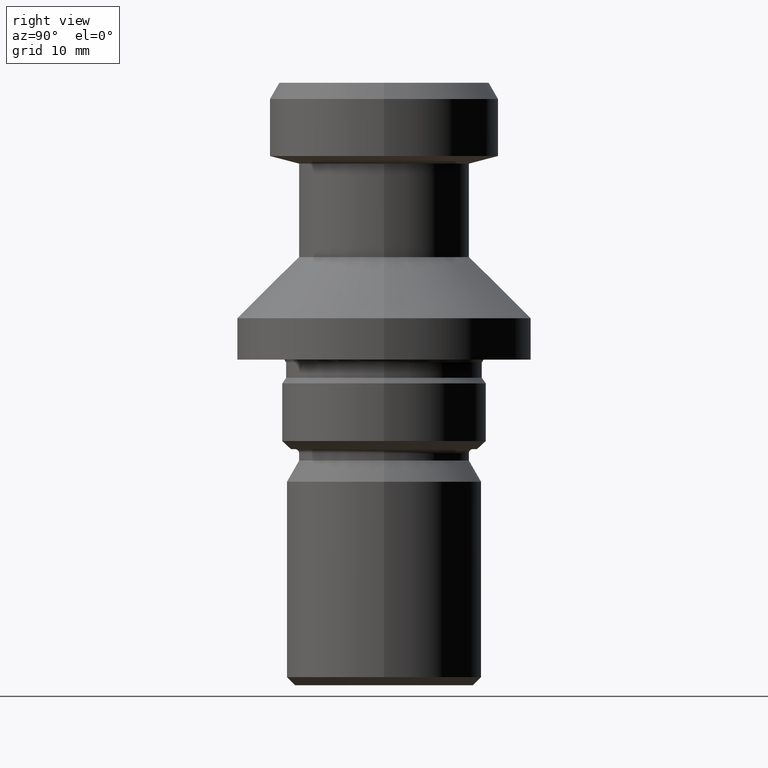
[diagram: clean part render]
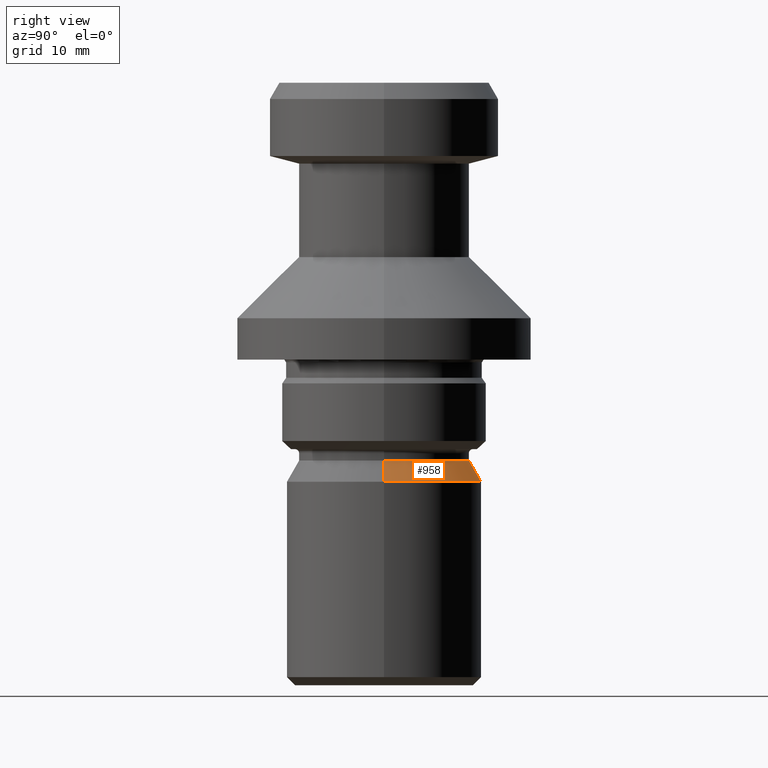
[diagram: same view with one face highlighted and labeled with its STEP entity id]
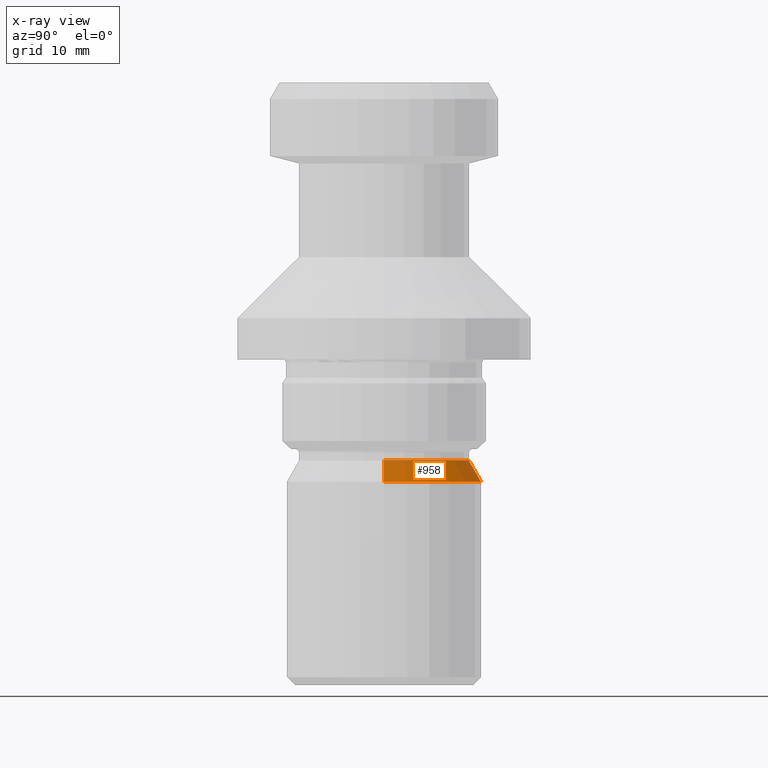
[diagram: x-ray of the same camera — body ghosted, the highlighted face saturated]
A machine part, right view. The second image highlights one B-rep face of the part: STEP entity #958.
The next image is the same camera in x-ray: the body ghosted, the highlighted face saturated — about 0% of this face is hidden behind the body in this view.
In plain terms, the highlighted conical surface has half-angle 30 deg.
Its self-contained STEP definition (entity closure, byte-faithful):
#67 = CARTESIAN_POINT ( 'NONE',  ( 12.00000000000000000, 0.0000000000000000000, -49.00000000000000700 ) ) ;
#82 = DIRECTION ( 'NONE',  ( 0.5000000000000001100, 6.123233995736767300E-017, -0.8660254037844386000 ) ) ;
#123 = VERTEX_POINT ( 'NONE', #1022 ) ;
#164 = DIRECTION ( 'NONE',  ( 1.000000000000000000, 0.0000000000000000000, 0.0000000000000000000 ) ) ;
#179 = VERTEX_POINT ( 'NONE', #647 ) ;
#192 = VECTOR ( 'NONE', #82, 1000.000000000000000 ) ;
#193 = VECTOR ( 'NONE', #313, 1000.000000000000000 ) ;
#224 = DIRECTION ( 'NONE',  ( -0.0000000000000000000, -0.0000000000000000000, 1.000000000000000000 ) ) ;
#277 = CONICAL_SURFACE ( 'NONE', #872, 12.00000000000000000, 0.5235987755982990400 ) ;
#298 = DIRECTION ( 'NONE',  ( 1.000000000000000000, 0.0000000000000000000, 0.0000000000000000000 ) ) ;
#313 = DIRECTION ( 'NONE',  ( -0.5000000000000001100, 0.0000000000000000000, -0.8660254037844386000 ) ) ;
#342 = AXIS2_PLACEMENT_3D ( 'NONE', #714, #810, #164 ) ;
#347 = AXIS2_PLACEMENT_3D ( 'NONE', #774, #224, #298 ) ;
#400 = LINE ( 'NONE', #588, #192 ) ;
#402 = LINE ( 'NONE', #478, #193 ) ;
#421 = CIRCLE ( 'NONE', #347, 10.50000000000000000 ) ;
#443 = CARTESIAN_POINT ( 'NONE',  ( 0.0000000000000000000, 0.0000000000000000000, -49.00000000000000700 ) ) ;
#445 = VERTEX_POINT ( 'NONE', #964 ) ;
#478 = CARTESIAN_POINT ( 'NONE',  ( -12.00000000000000000, 0.0000000000000000000, -49.00000000000000700 ) ) ;
#519 = ORIENTED_EDGE ( 'NONE', *, *, #866, .T. ) ;
#529 = FACE_OUTER_BOUND ( 'NONE', #579, .T. ) ;
#579 = EDGE_LOOP ( 'NONE', ( #1030, #519, #875, #742 ) ) ;
#588 = CARTESIAN_POINT ( 'NONE',  ( 12.00000000000000000, 1.469576158976823900E-015, -49.00000000000000700 ) ) ;
#612 = EDGE_CURVE ( 'NONE', #179, #445, #421, .T. ) ;
#618 = EDGE_CURVE ( 'NONE', #445, #123, #402, .T. ) ;
#647 = CARTESIAN_POINT ( 'NONE',  ( 10.50000000000000000, 1.377727649040772400E-015, -46.40192378864669100 ) ) ;
#652 = DIRECTION ( 'NONE',  ( 0.0000000000000000000, 0.0000000000000000000, -1.000000000000000000 ) ) ;
#714 = CARTESIAN_POINT ( 'NONE',  ( 0.0000000000000000000, 0.0000000000000000000, -49.00000000000000700 ) ) ;
#742 = ORIENTED_EDGE ( 'NONE', *, *, #618, .F. ) ;
#745 = VERTEX_POINT ( 'NONE', #67 ) ;
#767 = EDGE_CURVE ( 'NONE', #745, #123, #956, .T. ) ;
#769 = DIRECTION ( 'NONE',  ( -1.000000000000000000, 0.0000000000000000000, 0.0000000000000000000 ) ) ;
#774 = CARTESIAN_POINT ( 'NONE',  ( 0.0000000000000000000, 0.0000000000000000000, -46.40192378864669100 ) ) ;
#810 = DIRECTION ( 'NONE',  ( -0.0000000000000000000, -0.0000000000000000000, 1.000000000000000000 ) ) ;
#866 = EDGE_CURVE ( 'NONE', #179, #745, #400, .T. ) ;
#872 = AXIS2_PLACEMENT_3D ( 'NONE', #443, #652, #769 ) ;
#875 = ORIENTED_EDGE ( 'NONE', *, *, #767, .T. ) ;
#956 = CIRCLE ( 'NONE', #342, 12.00000000000000000 ) ;
#958 = ADVANCED_FACE ( 'NONE', ( #529 ), #277, .T. ) ;
#964 = CARTESIAN_POINT ( 'NONE',  ( -10.50000000000000000, 0.0000000000000000000, -46.40192378864669100 ) ) ;
#1022 = CARTESIAN_POINT ( 'NONE',  ( -12.00000000000000000, 1.469576158976823900E-015, -49.00000000000000700 ) ) ;
#1030 = ORIENTED_EDGE ( 'NONE', *, *, #612, .F. ) ;